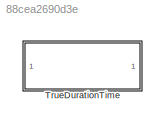
MODEL slx_88cea2690d3e
KIND library
CONFIG AbsTol = auto
CONFIG EnableMultiTasking = off
CONFIG FixedStep = auto
CONFIG MaxStep = auto
CONFIG MinStep = auto
CONFIG RelTol = 1e-3
CONFIG SampleTimeConstraint = Unconstrained
CONFIG Solver = VariableStepAuto
CONFIG SolverName = VariableStepAuto
CONFIG StartTime = 0.0
CONFIG StopTime = 10.0
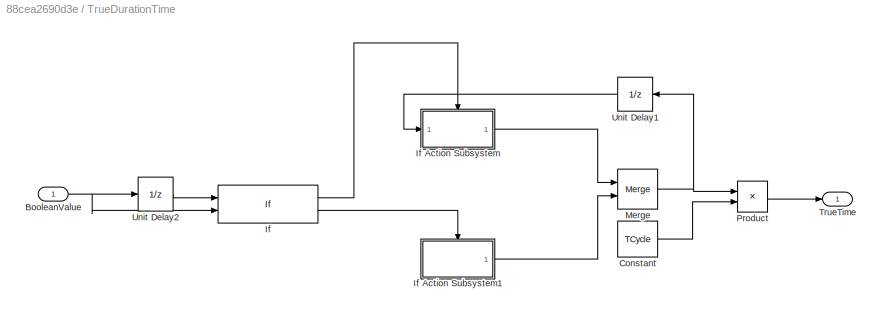
BLOCK [SubSystem] TrueDurationTime
  Ports = [1, 1]
  RequestExecContextInheritance = off
BLOCK [Inport] TrueDurationTime/BooleanValue
  IconDisplay = Port number
  OutDataTypeStr = boolean
BLOCK [Constant] TrueDurationTime/Constant
  OutDataTypeStr = single
  Value = TCycle
BLOCK [If] TrueDurationTime/If
  IfExpression = u1 & u2
  NumInputs = 2
  Ports = [2, 2]
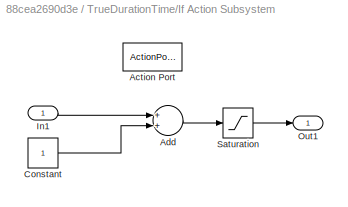
BLOCK [SubSystem] TrueDurationTime/If Action Subsystem
  Ports = [1, 1, 0, 0, 0, 0, 0, 1]
  RequestExecContextInheritance = off
  TreatAsAtomicUnit = on
BLOCK [ActionPort] TrueDurationTime/If Action Subsystem/Action Port
BLOCK [Sum] TrueDurationTime/If Action Subsystem/Add
  InputSameDT = off
  OutDataTypeStr = uint16
  Ports = [2, 1]
  SaturateOnIntegerOverflow = off
BLOCK [Constant] TrueDurationTime/If Action Subsystem/Constant
  OutDataTypeStr = uint16
BLOCK [Inport] TrueDurationTime/If Action Subsystem/In1
  IconDisplay = Port number
BLOCK [Outport] TrueDurationTime/If Action Subsystem/Out1
  IconDisplay = Port number
BLOCK [Saturate] TrueDurationTime/If Action Subsystem/Saturation
  InputPortMap = u0
  LowerLimit = 0
  Ports = [1, 1]
  UpperLimit = 60000
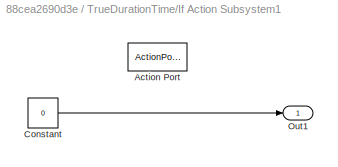
BLOCK [SubSystem] TrueDurationTime/If Action Subsystem1
  Ports = [0, 1, 0, 0, 0, 0, 0, 1]
  RequestExecContextInheritance = off
  TreatAsAtomicUnit = on
BLOCK [ActionPort] TrueDurationTime/If Action Subsystem1/Action Port
BLOCK [Constant] TrueDurationTime/If Action Subsystem1/Constant
  OutDataTypeStr = uint16
  Value = 0
BLOCK [Outport] TrueDurationTime/If Action Subsystem1/Out1
  IconDisplay = Port number
BLOCK [Merge] TrueDurationTime/Merge
  Ports = [2, 1]
BLOCK [Product] TrueDurationTime/Product
  InputSameDT = off
  OutDataTypeStr = Inherit: Inherit via internal rule
  Ports = [2, 1]
  RndMeth = Floor
  SaturateOnIntegerOverflow = off
BLOCK [Outport] TrueDurationTime/TrueTime
  IconDisplay = Port number
  OutDataTypeStr = single
BLOCK [UnitDelay] TrueDurationTime/Unit Delay1
  HasFrameUpgradeWarning = on
  SampleTime = -1
BLOCK [UnitDelay] TrueDurationTime/Unit Delay2
  HasFrameUpgradeWarning = on
  SampleTime = -1
NET TrueDurationTime/BooleanValue:1 -> TrueDurationTime/If:2, TrueDurationTime/Unit Delay2:1
LINE TrueDurationTime/Constant:1 -> TrueDurationTime/Product:2
LINE TrueDurationTime/If Action Subsystem/Add:1 -> TrueDurationTime/If Action Subsystem/Saturation:1
LINE TrueDurationTime/If Action Subsystem/Constant:1 -> TrueDurationTime/If Action Subsystem/Add:2
LINE TrueDurationTime/If Action Subsystem/In1:1 -> TrueDurationTime/If Action Subsystem/Add:1
LINE TrueDurationTime/If Action Subsystem/Saturation:1 -> TrueDurationTime/If Action Subsystem/Out1:1
LINE TrueDurationTime/If Action Subsystem1/Constant:1 -> TrueDurationTime/If Action Subsystem1/Out1:1
LINE TrueDurationTime/If Action Subsystem1:1 -> TrueDurationTime/Merge:2
LINE TrueDurationTime/If Action Subsystem:1 -> TrueDurationTime/Merge:1
LINE TrueDurationTime/If:1 -> TrueDurationTime/If Action Subsystem:ifaction
LINE TrueDurationTime/If:2 -> TrueDurationTime/If Action Subsystem1:ifaction
NET TrueDurationTime/Merge:1 -> TrueDurationTime/Product:1, TrueDurationTime/Unit Delay1:1
LINE TrueDurationTime/Product:1 -> TrueDurationTime/TrueTime:1
LINE TrueDurationTime/Unit Delay1:1 -> TrueDurationTime/If Action Subsystem:1
LINE TrueDurationTime/Unit Delay2:1 -> TrueDurationTime/If:1
note: NET lines group one-source signal fan-out (src -> all destinations, sorted); 1:1 wires keep LINE
